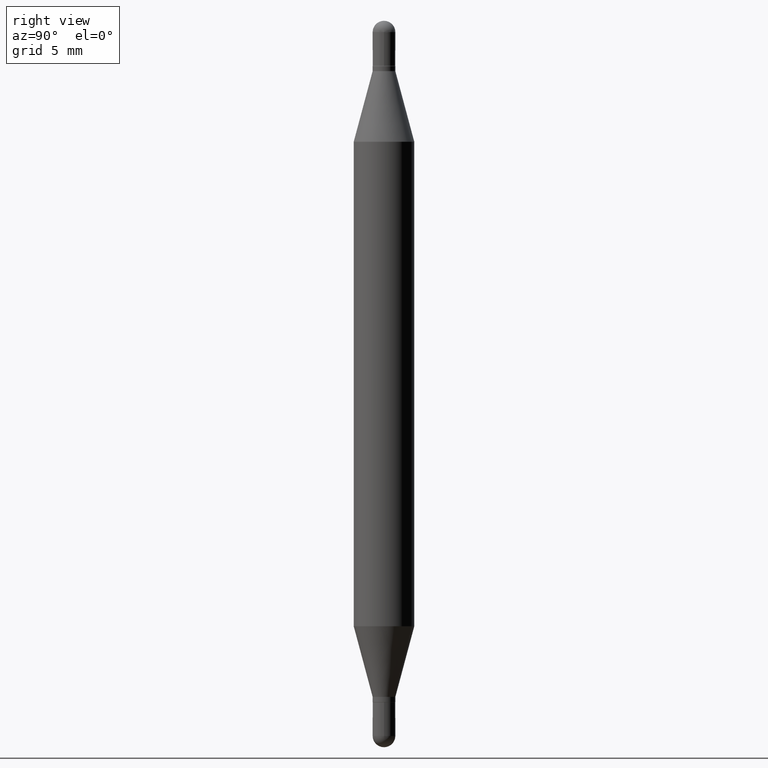
[diagram: clean part render]
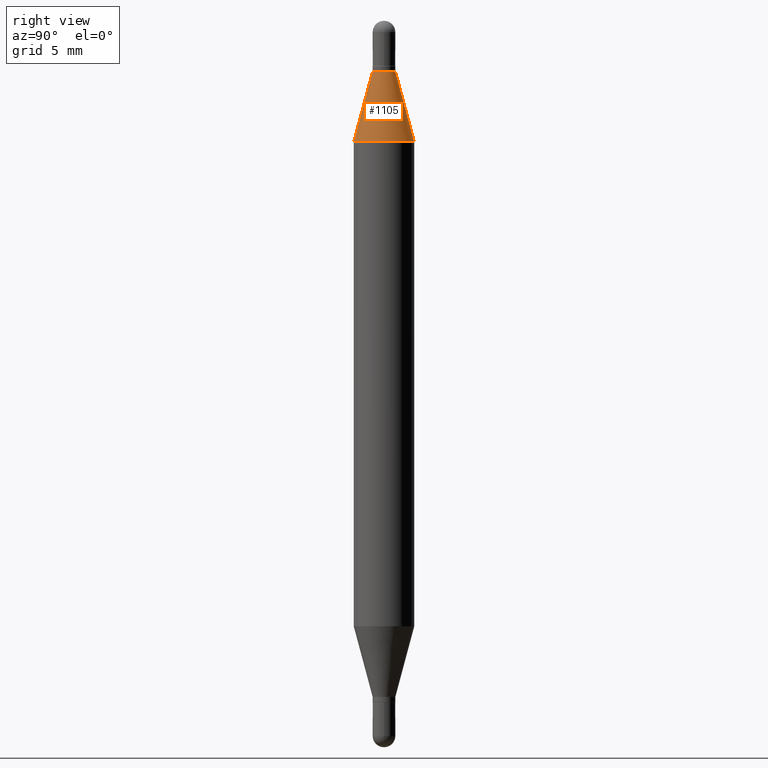
[diagram: same view with one face highlighted and labeled with its STEP entity id]
A machine part, right view. The second image highlights one B-rep face of the part: STEP entity #1105.
In plain terms, the highlighted conical surface has half-angle 15 deg.
Its self-contained STEP definition (entity closure, byte-faithful):
#27 = DIRECTION ( 'NONE',  ( -6.982962677686265133E-15, -1.000000000000000000, 3.640522379616609463E-15 ) ) ;
#146 = CARTESIAN_POINT ( 'NONE',  ( -1.637504747917063431E-16, -0.02345000000000002291, -0.1039999999999999536 ) ) ;
#178 = CARTESIAN_POINT ( 'NONE',  ( 4.287811248607512417E-16, 0.06249999999999911876, -0.2497365840355655620 ) ) ;
#215 = CIRCLE ( 'NONE', #657, 0.02344999999999965168 ) ;
#225 = ORIENTED_EDGE ( 'NONE', *, *, #890, .T. ) ;
#244 = EDGE_LOOP ( 'NONE', ( #1113, #837, #225, #263 ) ) ;
#263 = ORIENTED_EDGE ( 'NONE', *, *, #932, .T. ) ;
#312 = AXIS2_PLACEMENT_3D ( 'NONE', #925, #490, #339 ) ;
#339 = DIRECTION ( 'NONE',  ( -6.982962677686265133E-15, -1.000000000000000000, 3.640522379616609463E-15 ) ) ;
#389 = CARTESIAN_POINT ( 'NONE',  ( 3.057608608953349206E-29, -8.777032717339053700E-16, -0.2497365840355653399 ) ) ;
#391 = AXIS2_PLACEMENT_3D ( 'NONE', #389, #564, #482 ) ;
#395 = LINE ( 'NONE', #146, #439 ) ;
#439 = VECTOR ( 'NONE', #554, 39.37007874015748143 ) ;
#440 = CARTESIAN_POINT ( 'NONE',  ( 3.414017849035659863E-29, -3.705747078021827002E-16, -0.1040000000000000369 ) ) ;
#448 = EDGE_CURVE ( 'NONE', #770, #573, #215, .T. ) ;
#456 = DIRECTION ( 'NONE',  ( 1.775627540710967075E-15, 0.2588190451025184635, -0.9659258262890689783 ) ) ;
#467 = CARTESIAN_POINT ( 'NONE',  ( 1.608786780477752056E-16, 0.02344999999999928045, -0.1040000000000001201 ) ) ;
#482 = DIRECTION ( 'NONE',  ( -6.982962677686265922E-15, -1.000000000000000000, 3.278217592397115862E-15 ) ) ;
#490 = DIRECTION ( 'NONE',  ( -2.445571525097176627E-29, -3.479761566306266964E-15, -1.000000000000000000 ) ) ;
#493 = CONICAL_SURFACE ( 'NONE', #312, 0.02344999999999965168, 0.2617993877991505736 ) ;
#554 = DIRECTION ( 'NONE',  ( -1.807323732225332111E-15, -0.2588190451025252359, -0.9659258262890670910 ) ) ;
#558 = FACE_OUTER_BOUND ( 'NONE', #244, .T. ) ;
#564 = DIRECTION ( 'NONE',  ( 2.445571525097176627E-29, 3.479761566306266964E-15, 1.000000000000000000 ) ) ;
#573 = VERTEX_POINT ( 'NONE', #467 ) ;
#578 = LINE ( 'NONE', #1095, #1000 ) ;
#657 = AXIS2_PLACEMENT_3D ( 'NONE', #440, #786, #27 ) ;
#663 = EDGE_CURVE ( 'NONE', #573, #675, #578, .T. ) ;
#675 = VERTEX_POINT ( 'NONE', #178 ) ;
#770 = VERTEX_POINT ( 'NONE', #787 ) ;
#786 = DIRECTION ( 'NONE',  ( 2.445571525097176627E-29, 3.479761566306266964E-15, 1.000000000000000000 ) ) ;
#787 = CARTESIAN_POINT ( 'NONE',  ( -1.637504747917063431E-16, -0.02345000000000002291, -0.1039999999999999536 ) ) ;
#837 = ORIENTED_EDGE ( 'NONE', *, *, #448, .F. ) ;
#843 = VERTEX_POINT ( 'NONE', #1064 ) ;
#890 = EDGE_CURVE ( 'NONE', #770, #843, #395, .T. ) ;
#925 = CARTESIAN_POINT ( 'NONE',  ( 3.414017849035659863E-29, -3.705747078021827002E-16, -0.1040000000000000369 ) ) ;
#932 = EDGE_CURVE ( 'NONE', #843, #675, #1021, .T. ) ;
#1000 = VECTOR ( 'NONE', #456, 39.37007874015748854 ) ;
#1021 = CIRCLE ( 'NONE', #391, 0.06250000000000000000 ) ;
#1064 = CARTESIAN_POINT ( 'NONE',  ( -4.364351673553610517E-16, -0.06250000000000087430, -0.2497365840355651456 ) ) ;
#1095 = CARTESIAN_POINT ( 'NONE',  ( 1.608786780477741210E-16, 0.02344999999999928045, -0.1040000000000001201 ) ) ;
#1105 = ADVANCED_FACE ( 'NONE', ( #558 ), #493, .T. ) ;
#1113 = ORIENTED_EDGE ( 'NONE', *, *, #663, .F. ) ;